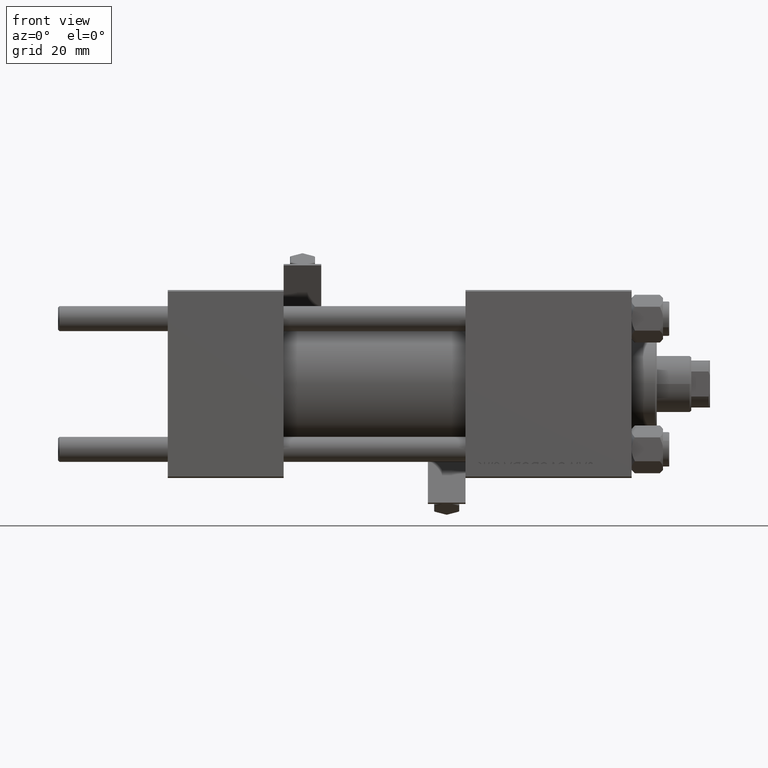
[diagram: clean part render]
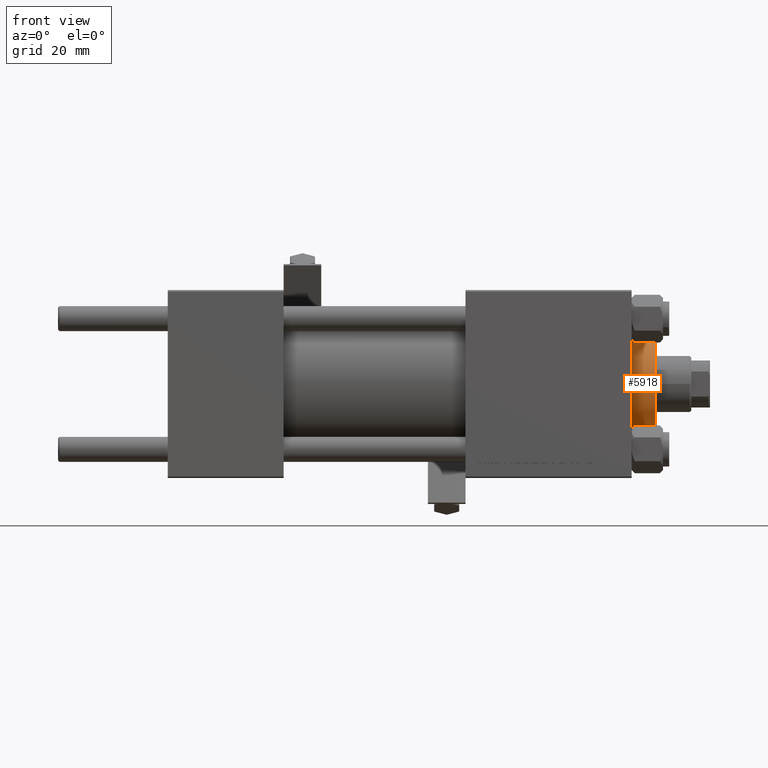
[diagram: same view with one face highlighted and labeled with its STEP entity id]
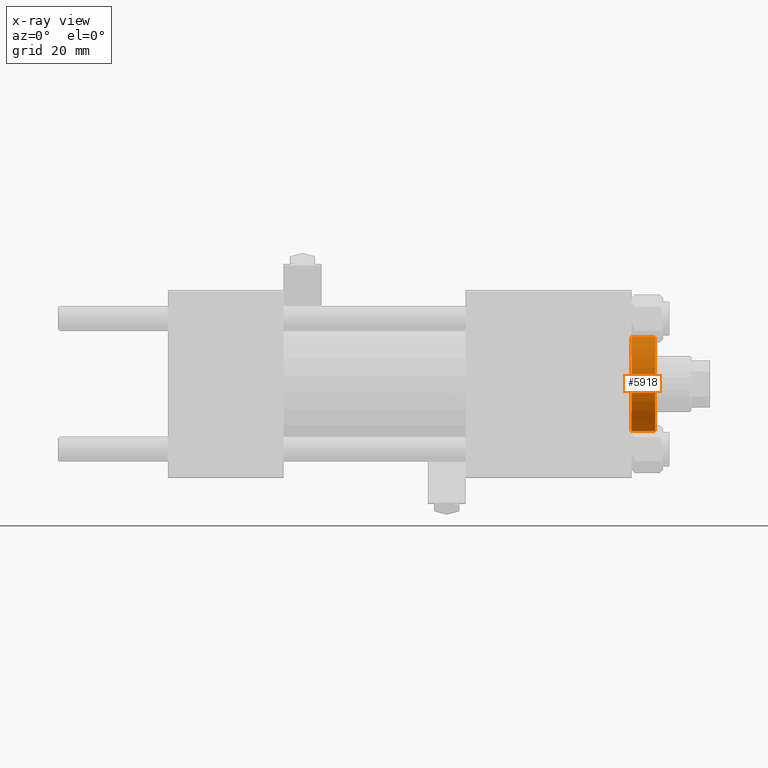
[diagram: x-ray of the same camera — body ghosted, the highlighted face saturated]
A machine part, front view. The second image highlights one B-rep face of the part: STEP entity #5918.
The next image is the same camera in x-ray: the body ghosted, the highlighted face saturated — about 0% of this face is hidden behind the body in this view.
In plain terms, the highlighted cylindrical surface (partial cylindrical patch) has radius 15 mm, axis along (-1, -0, 0).
Its self-contained STEP definition (entity closure, byte-faithful):
#3405 = VERTEX_POINT ( 'NONE', #28555 ) ;
#5736 = DIRECTION ( 'NONE',  ( -1.000000000000000000, 0.000000000000000000, 0.000000000000000000 ) ) ;
#5918 = ADVANCED_FACE ( 'NONE', ( #36121 ), #44616, .T. ) ;
#7062 = AXIS2_PLACEMENT_3D ( 'NONE', #9848, #40502, #5736 ) ;
#8877 = CARTESIAN_POINT ( 'NONE',  ( -15.00000000000000000, 0.000000000000000000, 28.69999999999999929 ) ) ;
#9504 = CARTESIAN_POINT ( 'NONE',  ( 0.000000000000000000, 0.000000000000000000, 28.69999999999999929 ) ) ;
#9848 = CARTESIAN_POINT ( 'NONE',  ( 0.000000000000000000, 0.000000000000000000, 36.69999999999999574 ) ) ;
#10675 = ORIENTED_EDGE ( 'NONE', *, *, #16412, .F. ) ;
#11546 = VECTOR ( 'NONE', #11776, 1000.000000000000000 ) ;
#11776 = DIRECTION ( 'NONE',  ( -0.000000000000000000, -0.000000000000000000, -1.000000000000000000 ) ) ;
#15391 = LINE ( 'NONE', #47307, #11546 ) ;
#15994 = AXIS2_PLACEMENT_3D ( 'NONE', #9504, #25476, #33183 ) ;
#16412 = EDGE_CURVE ( 'NONE', #40518, #35701, #15391, .T. ) ;
#16833 = CARTESIAN_POINT ( 'NONE',  ( -15.00000000000000000, 0.000000000000000000, 36.69999999999999574 ) ) ;
#21320 = CIRCLE ( 'NONE', #27086, 15.00000000000000000 ) ;
#23577 = EDGE_CURVE ( 'NONE', #3405, #42977, #31529, .T. ) ;
#24908 = EDGE_LOOP ( 'NONE', ( #10675, #39046, #49650, #28441 ) ) ;
#25052 = EDGE_CURVE ( 'NONE', #42977, #35701, #26683, .T. ) ;
#25359 = DIRECTION ( 'NONE',  ( 1.000000000000000000, 0.000000000000000000, 0.000000000000000000 ) ) ;
#25476 = DIRECTION ( 'NONE',  ( 0.000000000000000000, 0.000000000000000000, 1.000000000000000000 ) ) ;
#26683 = CIRCLE ( 'NONE', #15994, 15.00000000000000000 ) ;
#27086 = AXIS2_PLACEMENT_3D ( 'NONE', #33077, #49299, #25359 ) ;
#28441 = ORIENTED_EDGE ( 'NONE', *, *, #25052, .T. ) ;
#28555 = CARTESIAN_POINT ( 'NONE',  ( -15.00000000000000000, 0.000000000000000000, 36.20000000000000284 ) ) ;
#29122 = VECTOR ( 'NONE', #32530, 1000.000000000000000 ) ;
#31529 = LINE ( 'NONE', #16833, #29122 ) ;
#32073 = CARTESIAN_POINT ( 'NONE',  ( 15.00000000000000000, 1.836970198721029589E-15, 36.20000000000000284 ) ) ;
#32530 = DIRECTION ( 'NONE',  ( -0.000000000000000000, -0.000000000000000000, -1.000000000000000000 ) ) ;
#33077 = CARTESIAN_POINT ( 'NONE',  ( 0.000000000000000000, 0.000000000000000000, 36.20000000000000284 ) ) ;
#33183 = DIRECTION ( 'NONE',  ( 1.000000000000000000, 0.000000000000000000, 0.000000000000000000 ) ) ;
#35701 = VERTEX_POINT ( 'NONE', #42284 ) ;
#36121 = FACE_OUTER_BOUND ( 'NONE', #24908, .T. ) ;
#39046 = ORIENTED_EDGE ( 'NONE', *, *, #40726, .T. ) ;
#40502 = DIRECTION ( 'NONE',  ( -0.000000000000000000, -0.000000000000000000, -1.000000000000000000 ) ) ;
#40518 = VERTEX_POINT ( 'NONE', #32073 ) ;
#40726 = EDGE_CURVE ( 'NONE', #40518, #3405, #21320, .T. ) ;
#42284 = CARTESIAN_POINT ( 'NONE',  ( 15.00000000000000000, 1.836970198721029589E-15, 28.69999999999999929 ) ) ;
#42977 = VERTEX_POINT ( 'NONE', #8877 ) ;
#44616 = CYLINDRICAL_SURFACE ( 'NONE', #7062, 15.00000000000000000 ) ;
#47307 = CARTESIAN_POINT ( 'NONE',  ( 15.00000000000000000, 1.836970198721029589E-15, 36.69999999999999574 ) ) ;
#49299 = DIRECTION ( 'NONE',  ( 0.000000000000000000, 0.000000000000000000, -1.000000000000000000 ) ) ;
#49650 = ORIENTED_EDGE ( 'NONE', *, *, #23577, .T. ) ;